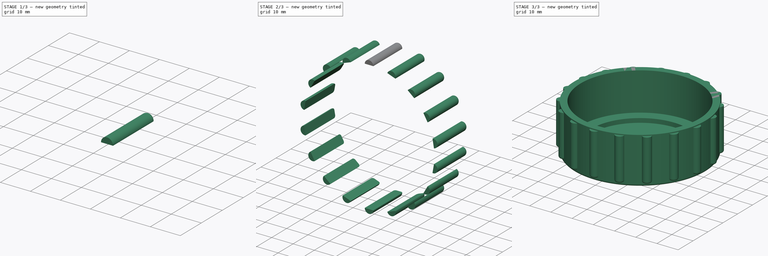
[diagram: build sequence overview — one tinted view per stage of 3, left to right]
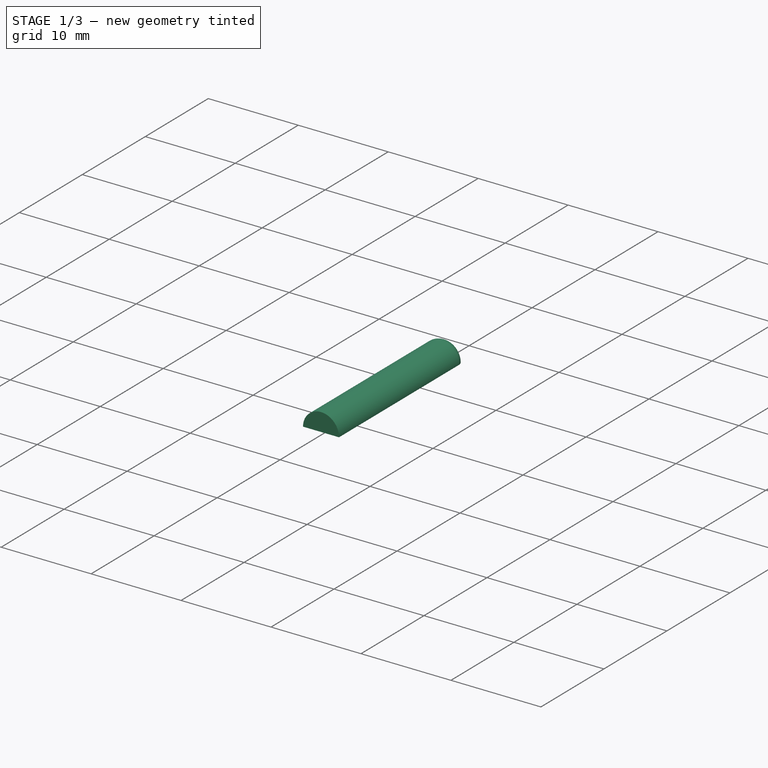
[diagram: stage 1 of 3 — iso view after this stage's code; geometry added in this stage tinted green]
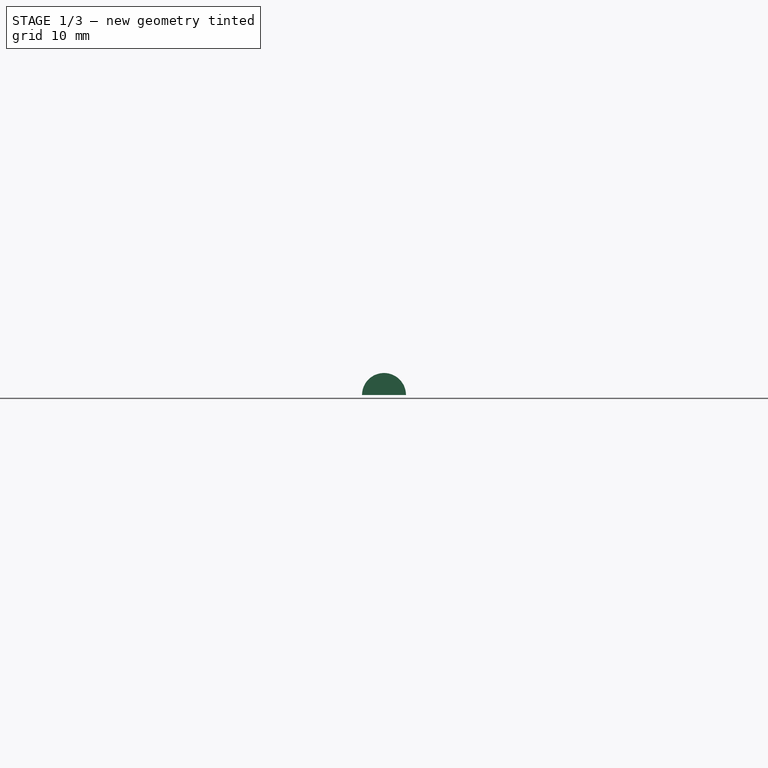
[diagram: stage 1 of 3 — front view after this stage's code; geometry added in this stage tinted green]
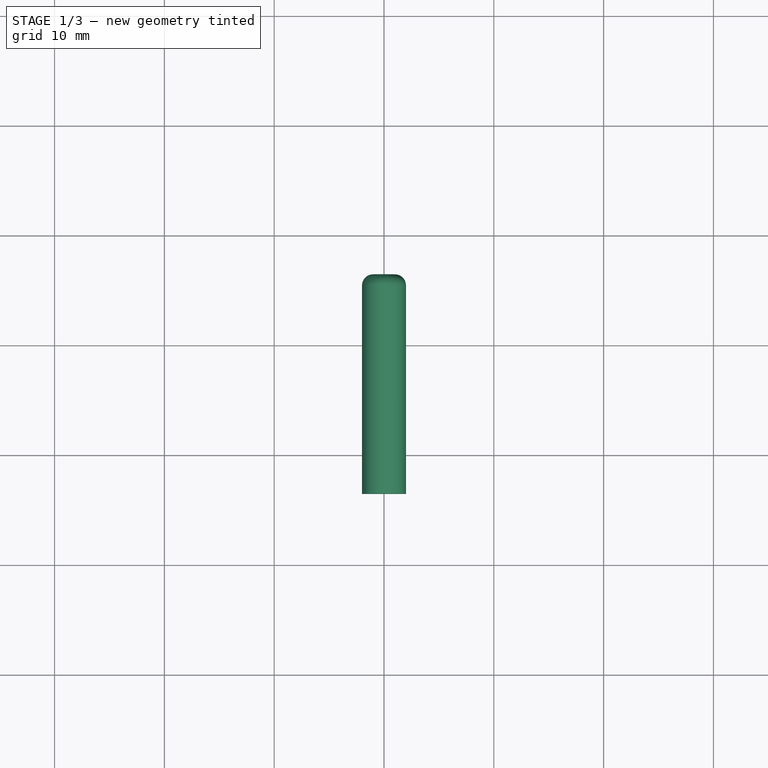
[diagram: stage 1 of 3 — top view after this stage's code; geometry added in this stage tinted green]
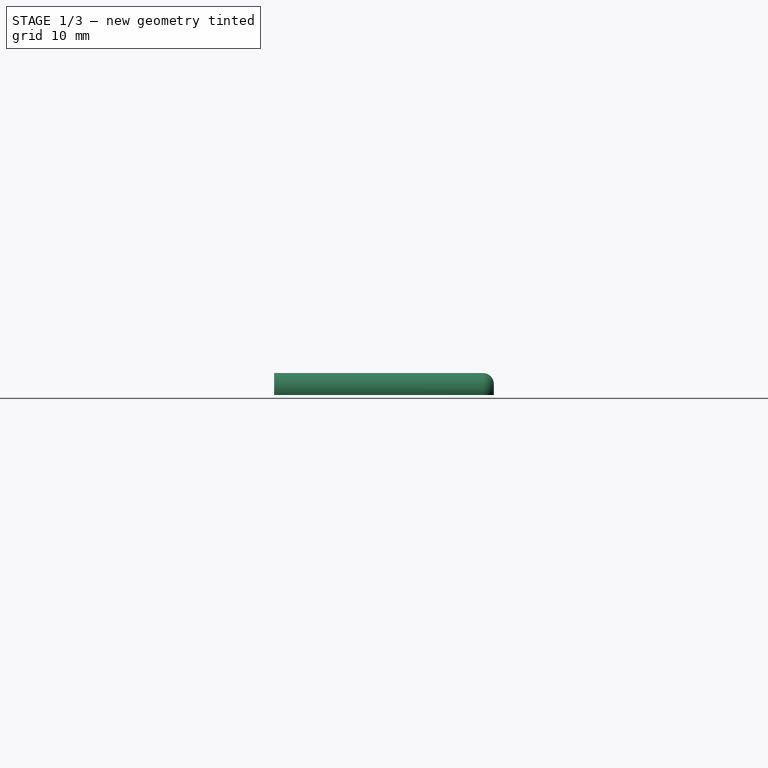
[diagram: stage 1 of 3 — right view after this stage's code; geometry added in this stage tinted green]
FCSTD DOCUMENT  (FreeCAD 0.21R33771 (Git))
Label: krishkaKanistri
License: All rights reserved
LicenseURL: http://en.wikipedia.org/wiki/All_rights_reserved
objects: Part::FeaturePython×7, Sketcher::SketchObject×2, Part::Plane×2, App::DocumentObjectGroup×2, PartDesign::Revolution×1, PartDesign::Body×1, Part::Cylinder×1, Part::Fillet×1, Part::MultiFuse×1, Part::Helix×1, Part::Sweep×1
note: 19 computed .brp shape members not serialized (recipe doc carries the construction recipe); baked Part::Feature solids carry a one-line shape summary decoded from their .brp

FEATURE [PartDesign::Body] Body
  Group = -> [Sketch,Revolution]
  Origin = -> Origin
  Tip = -> Revolution
FEATURE [Part::Cylinder] Cylinder
  Angle = 180
  AttacherType = Attacher::AttachEngine3D
  FirstAngle = 0
  Height = 20
  Placement = pos=(0,26.5,30.5) rot=(1,0,0;1.5708rad)
  Radius = 2
  SecondAngle = 0
FEATURE [Part::Fillet] Fillet
  Base = -> Cylinder
  Edges = 1 edges r=1: [Edge3]
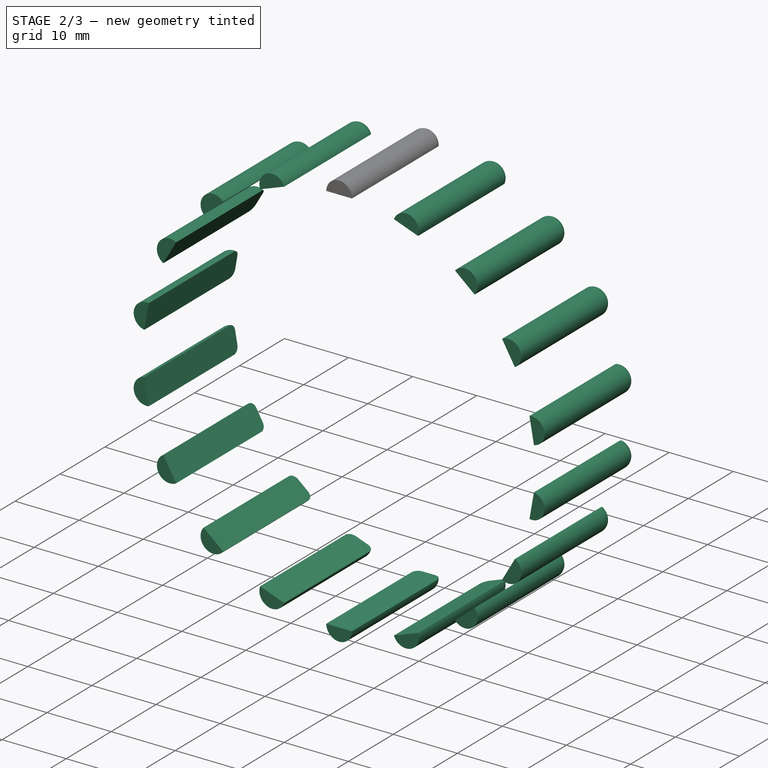
[diagram: stage 2 of 3 — iso view after this stage's code; geometry added in this stage tinted green]
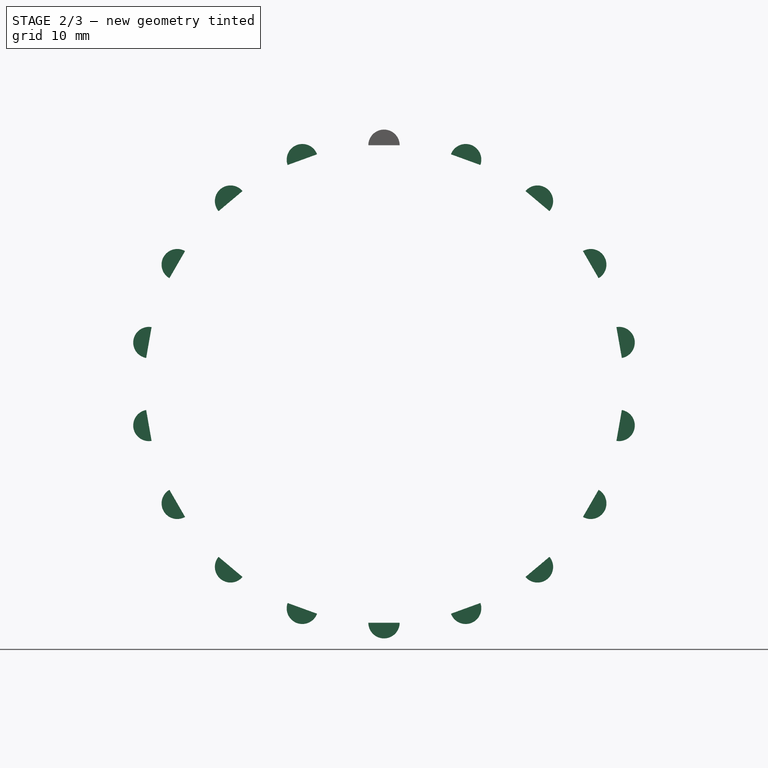
[diagram: stage 2 of 3 — front view after this stage's code; geometry added in this stage tinted green]
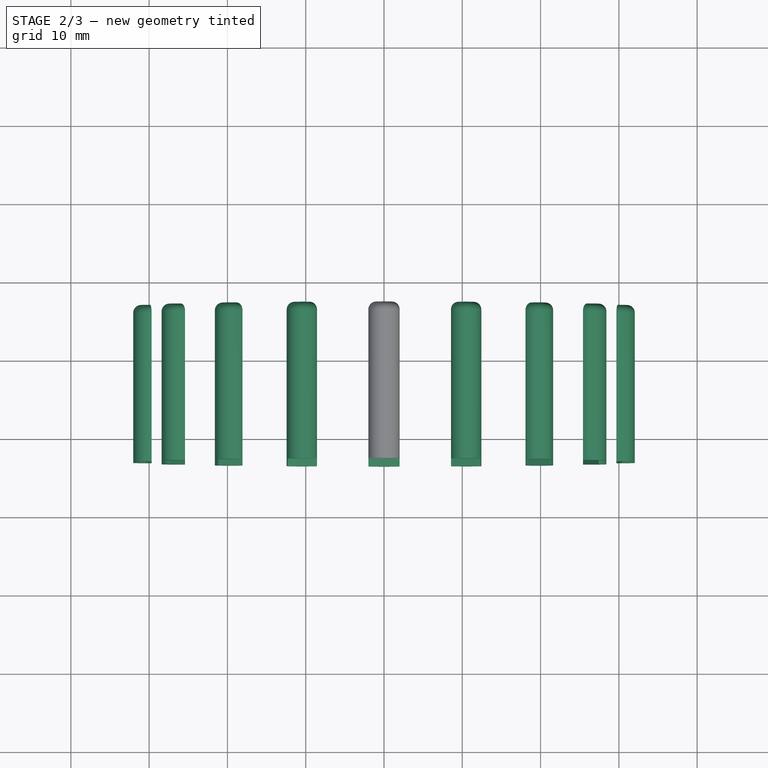
[diagram: stage 2 of 3 — top view after this stage's code; geometry added in this stage tinted green]
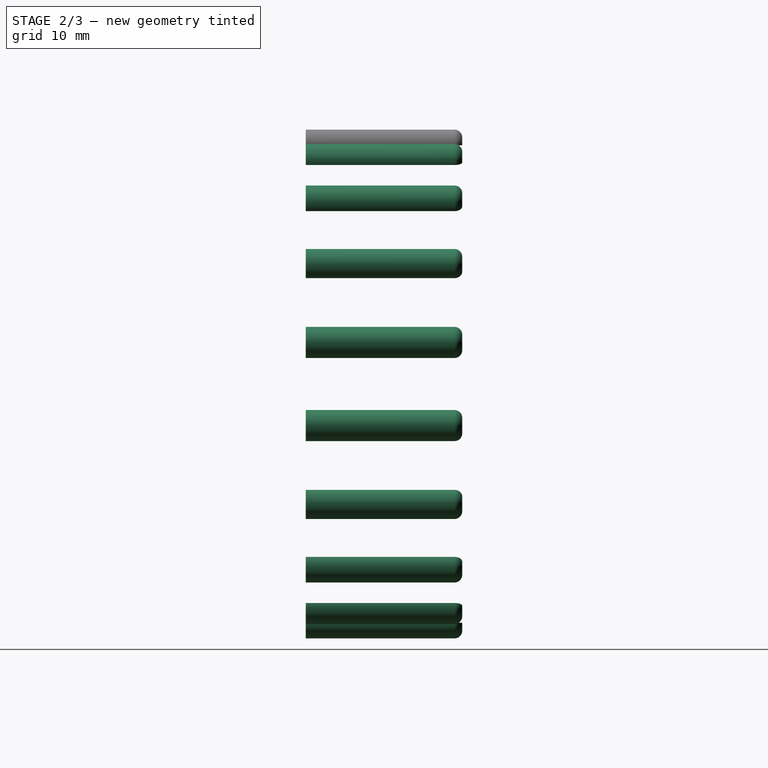
[diagram: stage 2 of 3 — right view after this stage's code; geometry added in this stage tinted green]
FEATURE [Part::FeaturePython] Array  # Draft array (typed FeaturePython)
  Angle = 360
  ArrayType = 1
  Axis = (0,0,1)
  AxisReference = -> XZ_Plane
  Base = -> Fillet
  Center = (0,0,0)
  Count = 18
  Fuse = false
  IntervalAxis = (0,0,0)
  IntervalX = (50,0,0)
  IntervalY = (0,50,0)
  IntervalZ = (0,0,50)
  NumberCircles = 3
  NumberPolar = 18
  NumberX = 2
  NumberY = 2
  NumberZ = 1
  RadialDistance = 50
  Symmetry = 1
  TangentialDistance = 25
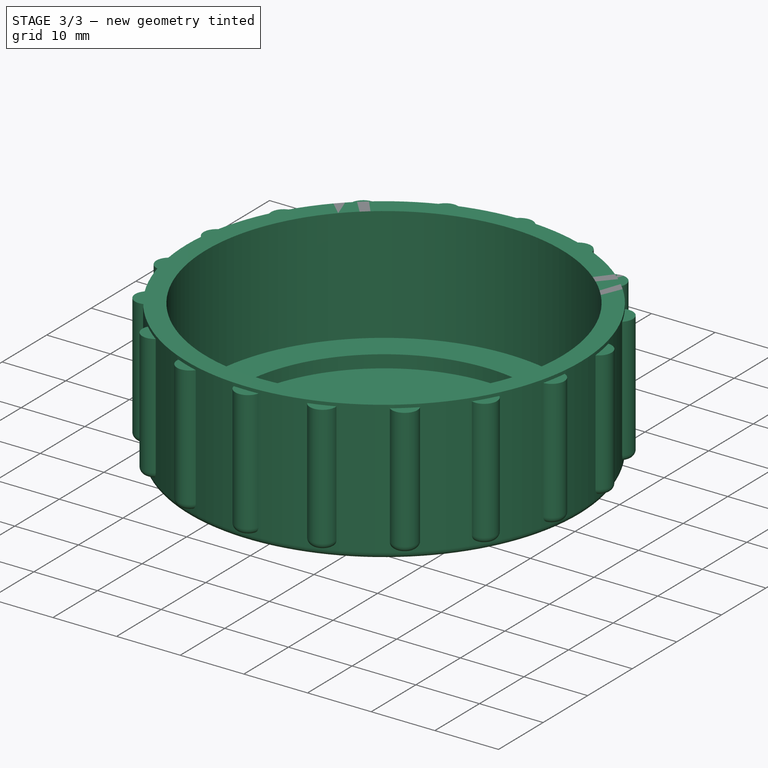
[diagram: stage 3 of 3 — iso view after this stage's code; geometry added in this stage tinted green]
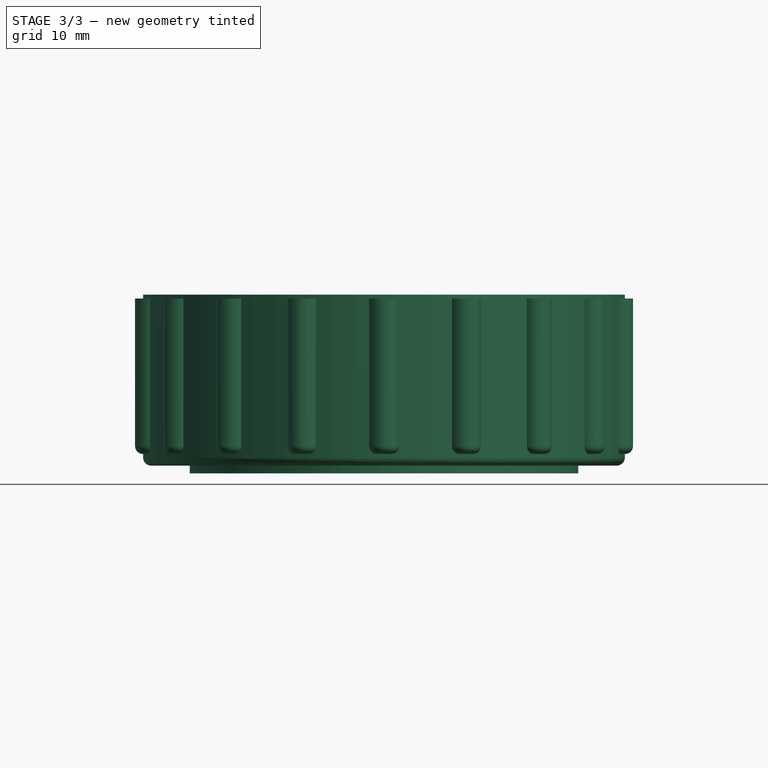
[diagram: stage 3 of 3 — front view after this stage's code; geometry added in this stage tinted green]
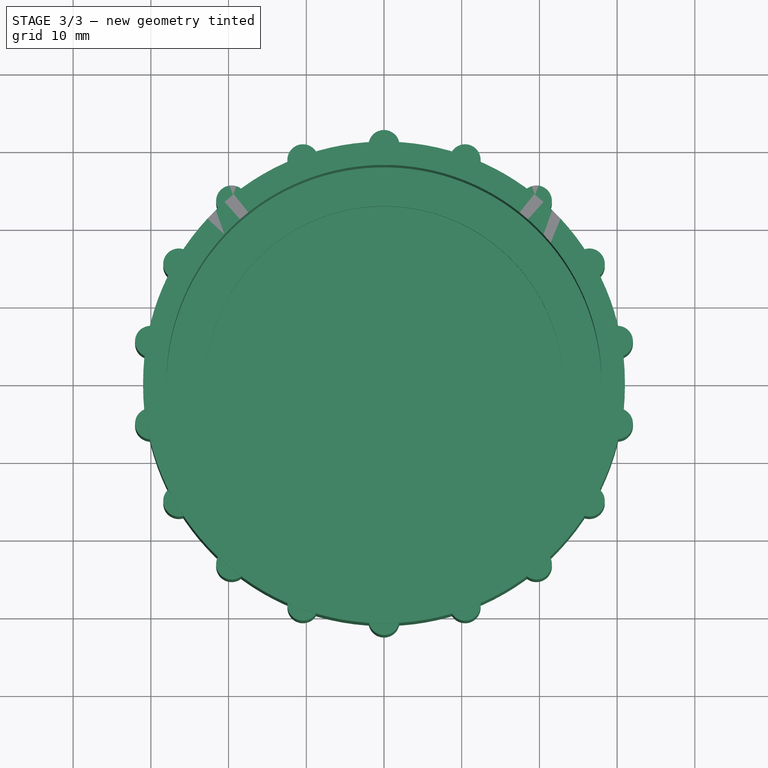
[diagram: stage 3 of 3 — top view after this stage's code; geometry added in this stage tinted green]
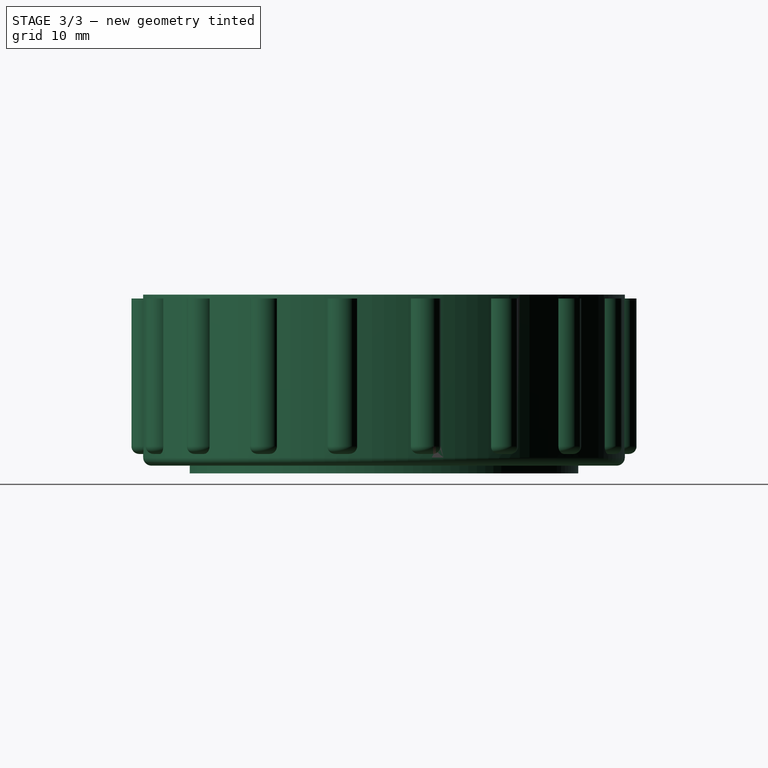
[diagram: stage 3 of 3 — right view after this stage's code; geometry added in this stage tinted green]
FEATURE [Sketcher::SketchObject] Sketch
  FullyConstrained = false
  MapMode = 5
  Support = -> [XY_Plane]
  sketch-geometry (13):
    g0: LineSegment StartX=0 StartY=28 StartZ=0 EndX=23 EndY=28 EndZ=0
    g1: LineSegment StartX=23 StartY=28 StartZ=0 EndX=23 EndY=29 EndZ=0
    g2: LineSegment StartX=23 StartY=29 StartZ=0 EndX=25 EndY=29 EndZ=0
    g3: LineSegment StartX=25 StartY=29 StartZ=0 EndX=25 EndY=28 EndZ=0
    g4: LineSegment StartX=25 StartY=28 StartZ=0 EndX=29.9505 EndY=28 EndZ=0
    g5: LineSegment StartX=31 StartY=26.9505 StartZ=0 EndX=31 EndY=6 EndZ=0
    g6: LineSegment StartX=31 StartY=6 StartZ=0 EndX=28 EndY=6 EndZ=0
    g7: LineSegment StartX=28 StartY=6 StartZ=0 EndX=28 EndY=24 EndZ=0
    g8: LineSegment StartX=28 StartY=24 StartZ=0 EndX=23 EndY=24 EndZ=0
    g9: LineSegment StartX=23 StartY=24 StartZ=0 EndX=23 EndY=26 EndZ=0
    g10: LineSegment StartX=23 StartY=26 StartZ=0 EndX=0 EndY=26 EndZ=0
    g11: LineSegment StartX=0 StartY=26 StartZ=0 EndX=0 EndY=28 EndZ=0
    g12: ArcOfCircle CenterX=29.9505 CenterY=26.9505 CenterZ=0 NormalX=0 NormalY=0 NormalZ=1 AngleXU=0 Radius=1.04949 StartAngle=0 EndAngle=1.5708
  constraints (37):
    c: PointOnObject(g0,g-2)
    c: Horizontal(g0)
    c: Coincident(g0,g1)
    c: Vertical(g1)
    c: Coincident(g1,g2)
    c: Horizontal(g2)
    c: Coincident(g2,g3)
    c: Coincident(g3,g4)
    c: Horizontal(g4)
    c: Coincident(g5,g6)
    c: Horizontal(g6)
    c: Coincident(g6,g7)
    c: Vertical(g7)
    c: Coincident(g7,g8)
    c: Horizontal(g8)
    c: Coincident(g8,g9)
    c: Coincident(g9,g10)
    c: PointOnObject(g10,g-2)
    c: Horizontal(g10)
    c: Coincident(g10,g11)
    c: Coincident(g11,g0)
    c: Vertical(g3)
    c: DistanceX(g0,g0) = 23
    c: DistanceY(g10,g0) = 2
    c: DistanceY(g0,g1) = 1
    c: DistanceY(g3,g2) = 1
    c: DistanceX(g1,g2) = 2
    c: DistanceY(g6,g7) = 18
    c: DistanceX(g8,g7) = 5
    c: Vertical(g9)
    c: Equal(g10,g0)
    c: DistanceY(g-1,g0) = 28
    c: DistanceY(g-1,g6) = 6
    c: Vertical(g5)
    c: DistanceX(g-1,g5) = 31
    c: Tangent(g4,g12) = 1.5708
    c: Tangent(g5,g12) = 1.5708
FEATURE [PartDesign::Revolution] Revolution
  Angle = 360
  Axis = (0,1,0)
  Base = (0,0,0)
  Profile = -> Sketch
  ReferenceAxis = -> Sketch [V_Axis]
  Refine = true
  Reversed = true
FEATURE [Part::MultiFuse] Fusion
  Placement = pos=(0,0,30) rot=(1,0,0;-1.5708rad)
  Refine = true
  Shapes = -> [Body,Array]
FEATURE [Sketcher::SketchObject] Sketch001
  AttachmentOffset = pos=(0,0,0) rot=(1,0,0;0.034907rad)
  FullyConstrained = false
  MapMode = 2
  Placement = pos=(0,0,30) rot=(-1,0,0;1.53589rad)
  Support = -> [Fusion]
  sketch-geometry (12):
    g0: LineSegment StartX=29 StartY=96.7342 StartZ=0 EndX=29 EndY=-39.2633 EndZ=0
    g1: GeomPoint X=29 Y=0 Z=0
    g2: GeomPoint X=29 Y=6 Z=0
    g3: LineSegment StartX=27 StartY=26.037 StartZ=0 EndX=27 EndY=-11.4157 EndZ=0
    g4: GeomPoint X=27 Y=3 Z=0
    g5: Circle CenterX=27 CenterY=3 CenterZ=0 NormalX=0 NormalY=0 NormalZ=1 AngleXU=0 Radius=1.75
    g6: ArcOfCircle CenterX=29 CenterY=0 CenterZ=0 NormalX=0 NormalY=0 NormalZ=1 AngleXU=0 Radius=1.75 StartAngle=2.1588 EndAngle=4.71239
    g7: Circle CenterX=29 CenterY=6 CenterZ=0 NormalX=0 NormalY=0 NormalZ=1 AngleXU=0 Radius=1.75
    g8: ArcOfCircle CenterX=27 CenterY=3 CenterZ=0 NormalX=0 NormalY=0 NormalZ=1 AngleXU=0 Radius=1.85555 StartAngle=5.30039 EndAngle=7.26598
    g9: LineSegment StartX=28.0293 StartY=4.54391 StartZ=0 EndX=28.0293 EndY=1.45609 EndZ=0
    g10: LineSegment StartX=28.0293 StartY=4.54391 StartZ=0 EndX=29 EndY=4.54391 EndZ=0
    g11: LineSegment StartX=29 StartY=4.54391 StartZ=0 EndX=29 EndY=-1.62661 EndZ=0
  constraints (28):
    c: Vertical(g0)
    c: Distance(g-1,g0) = 29
    c: PointOnObject(g1,g0)
    c: PointOnObject(g2,g0)
    c: DistanceY(g1,g2) = 6
    c: PointOnObject(g1,g-1)
    c: Vertical(g3)
    c: Distance(g2,g3) = 2
    c: PointOnObject(g4,g3)
    c: DistanceY(g-1,g4) = 3
    c: Coincident(g5,g4)
    c: Coincident(g6,g1)
    c: Coincident(g7,g2)
    c: Equal(g6,g5)
    c: Equal(g6,g7)
    c: Radius(g6) = 1.75
    c: Coincident(g8,g4)
    c: Tangent(g8,g7) = 1.5708
    c: Coincident(g9,g8)
    c: Coincident(g9,g8)
    c: Vertical(g9)
    c: Coincident(g10,g8)
    c: PointOnObject(g10,g0)
    c: Coincident(g11,g10)
    c: PointOnObject(g11,g0)
    c: PointOnObject(g6,g0)
    c: PointOnObject(g6,g8)
    c: Horizontal(g10)
FEATURE [Part::Helix] Helix
  Angle = 0
  AttacherType = Attacher::AttachEngine3D
  Height = 30
  LocalCoord = 0
  Pitch = 6
  Radius = 29
  SegmentLength = 0
  Style = 1
FEATURE [Part::Sweep] Sweep
  Frenet = true
  Sections = -> [Sketch001]
  Solid = true
  Spine = -> Helix
  Transition = 1
FEATURE [Part::Plane] Plane
  AttacherType = Attacher::AttachEngine3D
  Length = 80
  Placement = pos=(-40,-43,6) rot=(0,0,1;0rad)
  Width = 80
FEATURE [Part::Plane] Plane001
  AttacherType = Attacher::AttachEngine3D
  Length = 80
  Placement = pos=(-42,-36,24) rot=(0,0,1;0rad)
  Width = 80
FEATURE [Part::FeaturePython] Slice  # WARN: FeaturePython — macro-defined, semantics opaque (R4)
  Base = -> Sweep
  Mode = 1
  Tolerance = 0
  Tools = -> [Plane]
FEATURE [Part::FeaturePython] Slice_child0  label="Slice.0"  # WARN: FeaturePython — macro-defined, semantics opaque (R4)
  Base = -> Slice
  FilterType = 1
  Invert = false
  OverrideMaxVal = 0
  WindowFrom = 80
  WindowTo = 100
  items = 0
FEATURE [Part::FeaturePython] Slice_child1  label="Slice.1"  # WARN: FeaturePython — macro-defined, semantics opaque (R4)
  Base = -> Slice
  FilterType = 1
  Invert = false
  OverrideMaxVal = 0
  WindowFrom = 80
  WindowTo = 100
  items = 1
FEATURE [App::DocumentObjectGroup] GrExplode_Slice  label="Exploded Slice"
  Group = -> [Slice_child0,Slice_child1]
FEATURE [Part::FeaturePython] Slice001  # WARN: FeaturePython — macro-defined, semantics opaque (R4)
  Base = -> Slice_child1
  Mode = 1
  Tolerance = 0
  Tools = -> [Plane001]
FEATURE [Part::FeaturePython] Slice001_child0  label="Slice001.0"  # WARN: FeaturePython — macro-defined, semantics opaque (R4)
  Base = -> Slice001
  FilterType = 1
  Invert = false
  OverrideMaxVal = 0
  WindowFrom = 80
  WindowTo = 100
  items = 0
FEATURE [Part::FeaturePython] Slice001_child1  label="Slice001.1"  # WARN: FeaturePython — macro-defined, semantics opaque (R4)
  Base = -> Slice001
  FilterType = 1
  Invert = false
  OverrideMaxVal = 0
  WindowFrom = 80
  WindowTo = 100
  items = 1
FEATURE [App::DocumentObjectGroup] GrExplode_Slice001  label="Exploded Slice001"
  Group = -> [Slice001_child0,Slice001_child1]
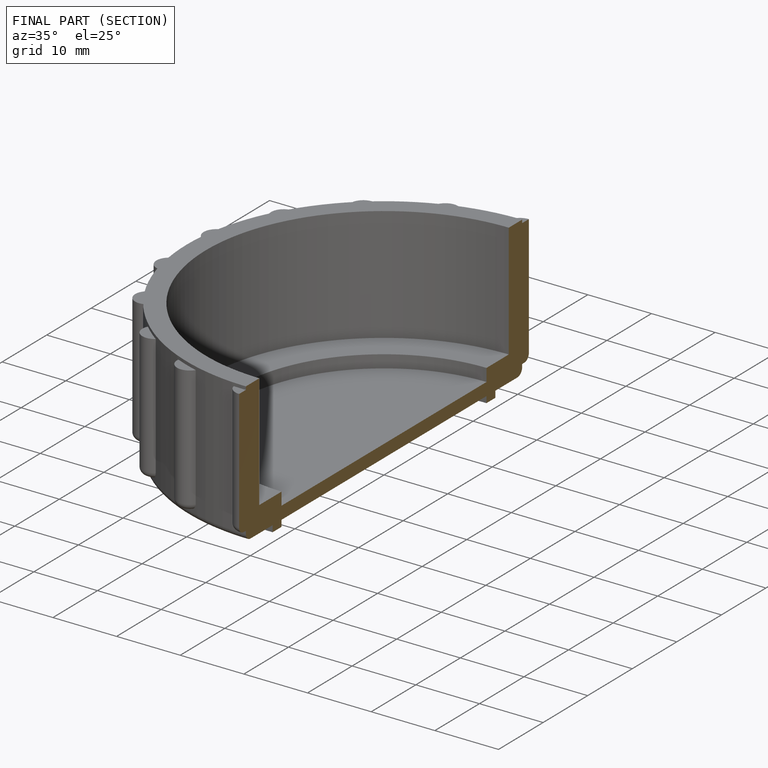
[diagram: finished part — half-section view (interior)]
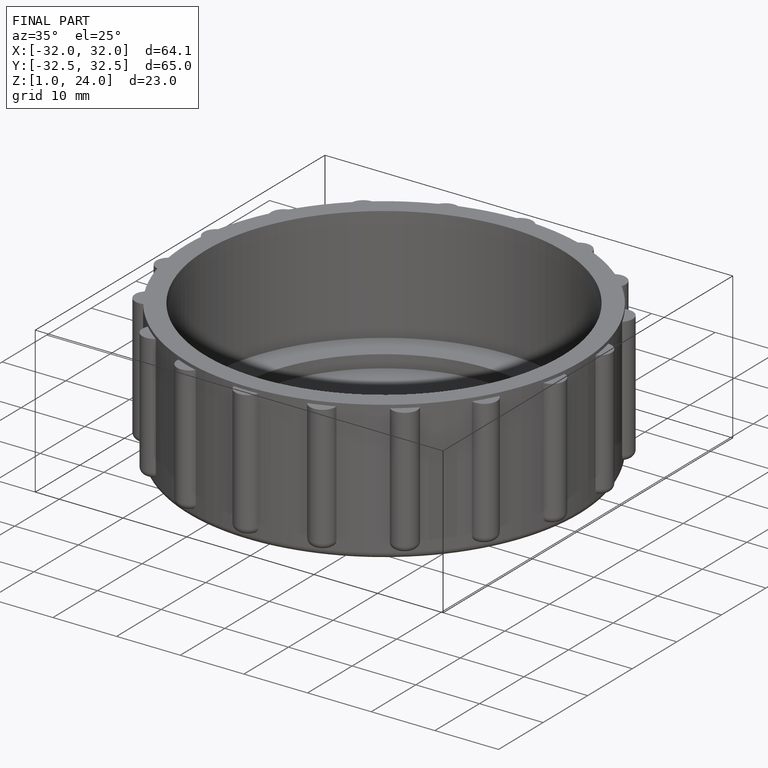
[diagram: finished part — iso view with bounding-box wireframe]
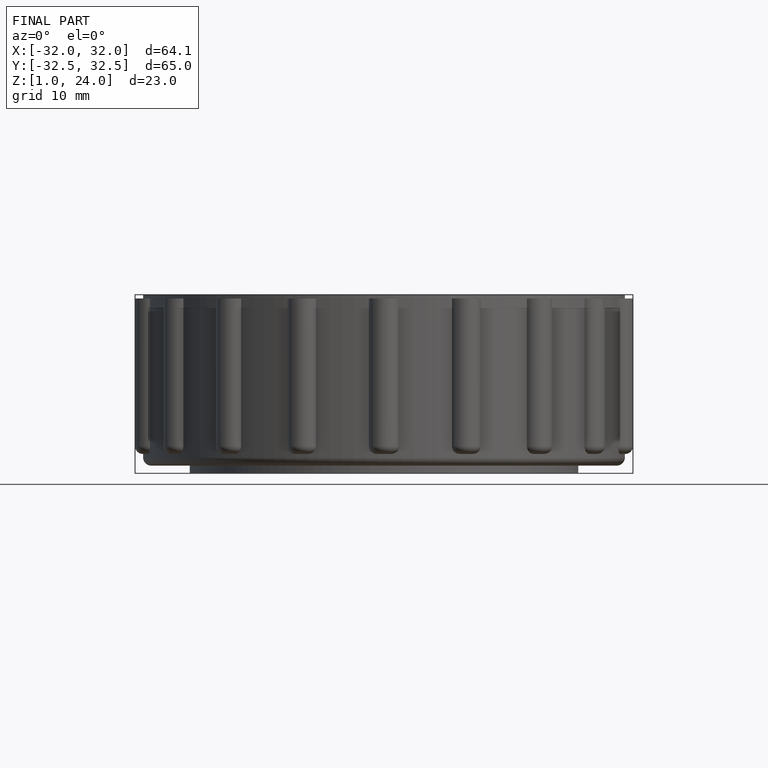
[diagram: finished part — front view with bounding-box wireframe]
